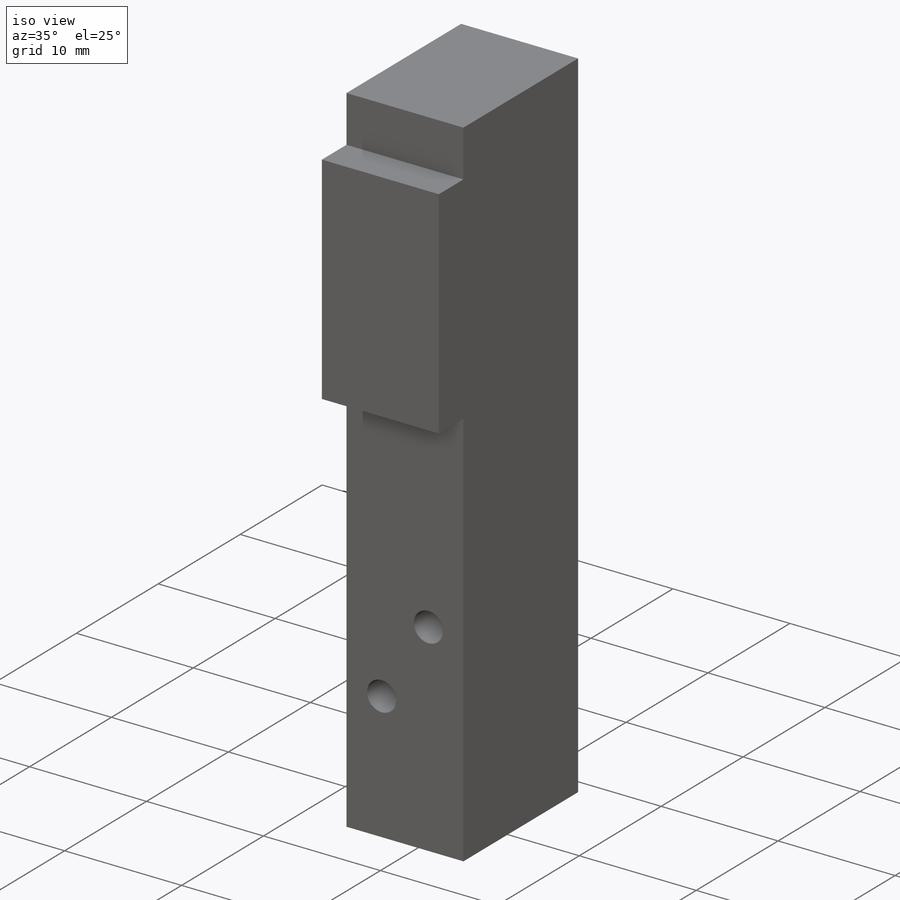
[diagram: iso view]
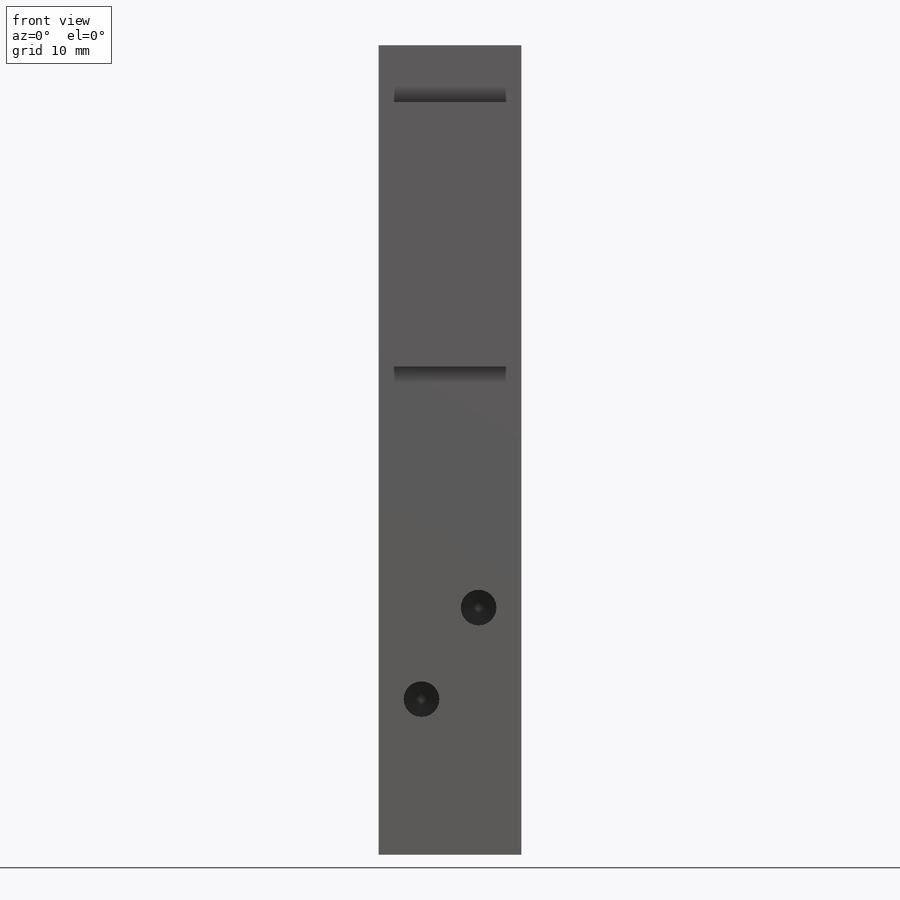
[diagram: front view]
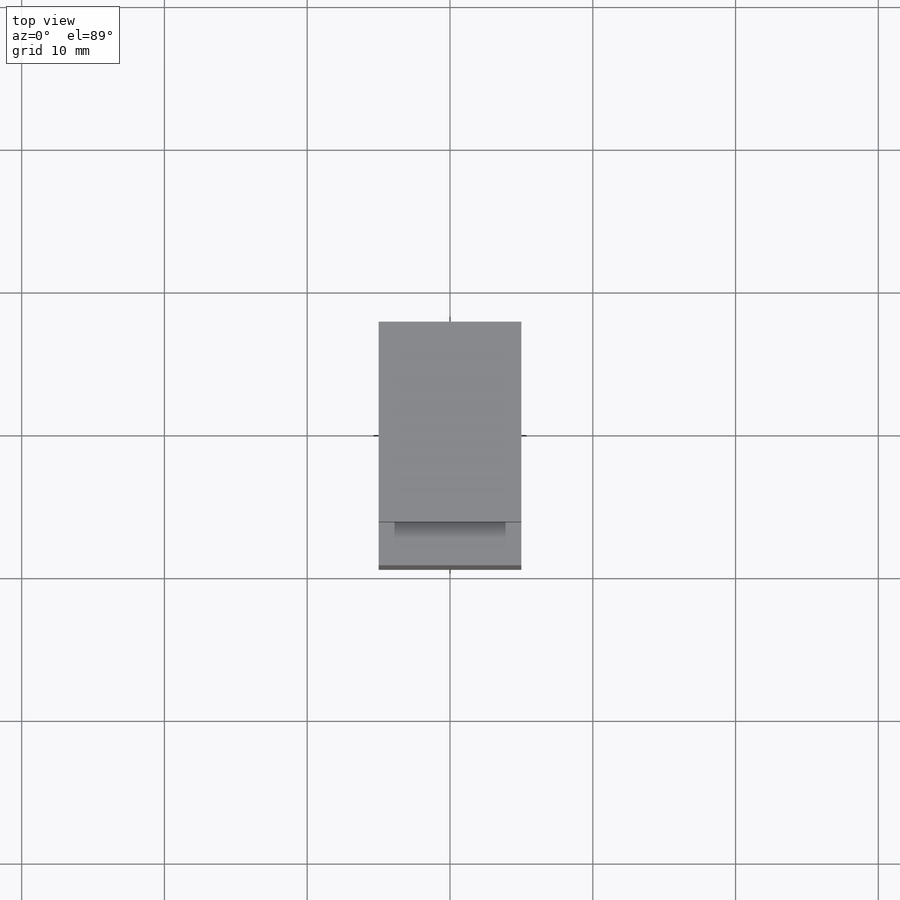
[diagram: top view]
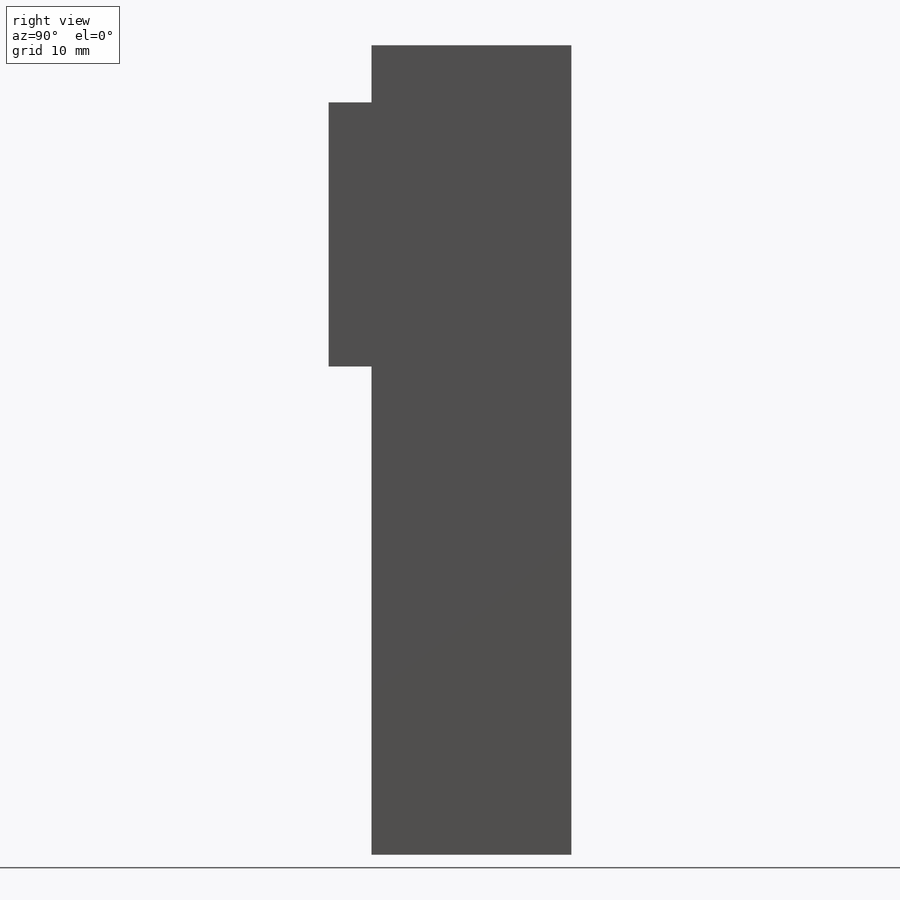
[diagram: right view]
SOLIDWORKS PART (.sldprt)
format: sldprt  version: not decoded by parser v0  size: 367,104 bytes
history: native  units: mm
features: sketch x6, thread x5, extrude x2, hole x2, material x1 (+13 scaffold rows collapsed)
feature tree (29):
  scaffold x13  (default folders/planes/origin — collapsed)
  material  "6061 Alloy"
  sketch  "Sketch1"  dims[D1=14.0mm D2=10.0mm D3=5.0mm D4=7.0mm]
  extrude  "Extrude1"  Depth=56.7mm
  sketch  "Sketch2"  dims[D1=18.498mm D2=4.0mm]
  extrude  "Extrude2"  Depth=3mm
  hole  "M3x0.5 Tapped Hole1"  Diameter=2.5mm Depth=7.5mm
  sketch  "3DSketch2"  dims[D1=5.0mm D2=5.0mm D3=5.0mm D4=6.4mm D5=6.4mm D6=36.2mm]
  sketch  "Sketch4"  dims[hole-wizard template sketch: 49 standard entries collapsed; hole parameters kept: c15.Drill Angle=160.0deg]
  thread  "Hole Thread1"  Diameter=6mm  [1 undecoded]
  thread  "Hole Thread2"  Diameter=6mm  [1 undecoded]
  thread  "Hole Thread3"  Diameter=6mm  [1 undecoded]
  hole  "M3x0.5 Tapped Hole2"  Diameter=2.5mm Depth=7.5mm
  sketch  "Sketch6"  dims[D1=3.0mm D2=3.0mm D3=39.4mm D4=6.41mm]
  sketch  "Sketch5"  dims[hole-wizard template sketch: 49 standard entries collapsed; hole parameters kept: c15.Drill Angle=160.0deg]
  thread  "Hole Thread4"  Diameter=6mm  [1 undecoded]
  thread  "Hole Thread5"  Diameter=6mm  [1 undecoded]
decode coverage: 15 of 15 modeling features carry decoded parameters
note: ~ marks probable driven/reference dimensions
note: 5 parameter values undecoded
note: suppression state not decoded; provenance and decode notes live in map.json
